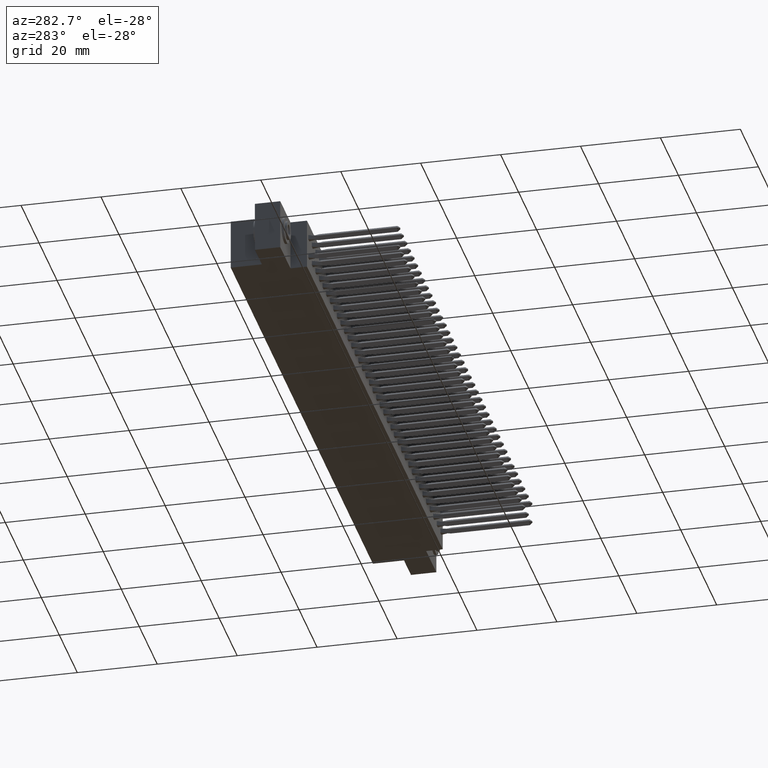
[diagram: clean part render]
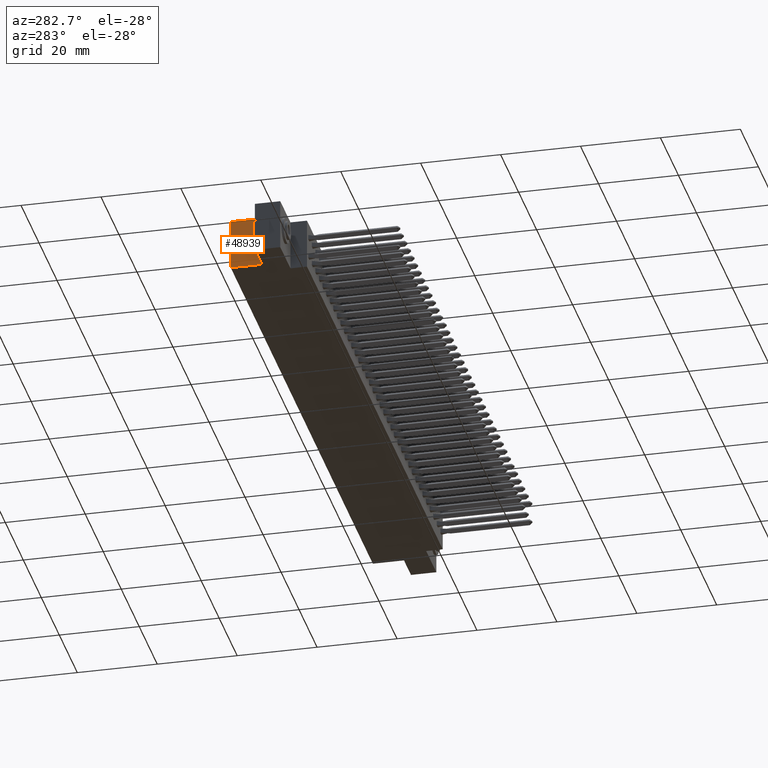
[diagram: same view with one face highlighted and labeled with its STEP entity id]
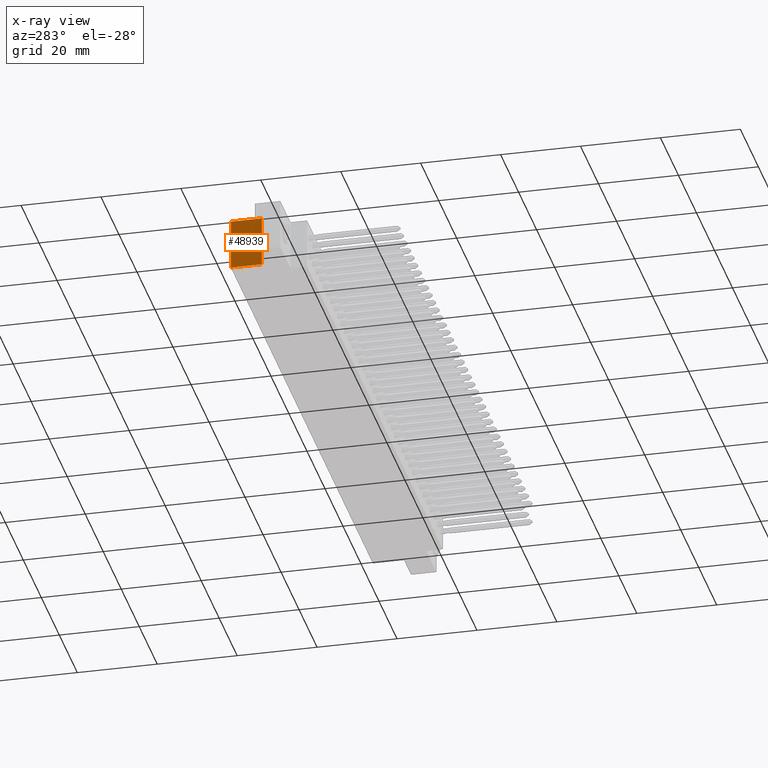
[diagram: x-ray of the same camera — body ghosted, the highlighted face saturated]
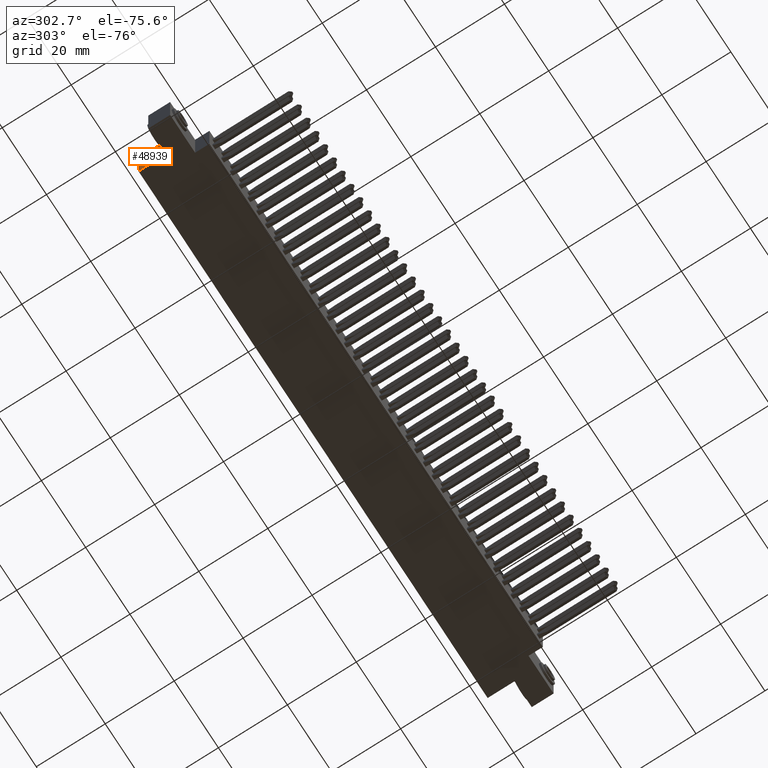
[diagram: same view with one face highlighted and labeled with its STEP entity id]
A machine part, auxiliary view. The second image highlights one B-rep face of the part: STEP entity #48939.
The next image is the same camera in x-ray: the body ghosted, the highlighted face saturated — about 0% of this face is hidden behind the body in this view.
A second angle (auxiliary view) of the same face is appended — the face is thin or edge-on in the first view.
In plain terms, the highlighted planar face has unit normal (1, 0, -0).
Its self-contained STEP definition (entity closure, byte-faithful):
#151 = CARTESIAN_POINT ( 'NONE',  ( 0.3050000000000000500, 0.4129999999999999200, 0.0000000000000000000 ) ) ;
#708 = CARTESIAN_POINT ( 'NONE',  ( 0.3049999999999999900, 0.4129999999999999200, -0.5000000000000000000 ) ) ;
#1053 = CARTESIAN_POINT ( 'NONE',  ( 0.3050000000000000500, 0.4129999999999999200, -0.5000000000000000000 ) ) ;
#1367 = FACE_OUTER_BOUND ( 'NONE', #30813, .T. ) ;
#2786 = ORIENTED_EDGE ( 'NONE', *, *, #50946, .T. ) ;
#3480 = CARTESIAN_POINT ( 'NONE',  ( 0.3050000000000000500, 0.4129999999999999200, 0.0000000000000000000 ) ) ;
#3602 = DIRECTION ( 'NONE',  ( -0.0000000000000000000, 1.000000000000000000, -0.0000000000000000000 ) ) ;
#4714 = DIRECTION ( 'NONE',  ( -1.365923996832131600E-016, 0.0000000000000000000, -1.000000000000000000 ) ) ;
#4964 = CARTESIAN_POINT ( 'NONE',  ( 0.3049999999999999900, 0.7199999999999999700, -0.5000000000000000000 ) ) ;
#7237 = VERTEX_POINT ( 'NONE', #14486 ) ;
#9688 = DIRECTION ( 'NONE',  ( -1.365923996832131600E-016, -0.0000000000000000000, -1.000000000000000000 ) ) ;
#12526 = DIRECTION ( 'NONE',  ( -1.365923996832131600E-016, -0.0000000000000000000, -1.000000000000000000 ) ) ;
#13334 = VERTEX_POINT ( 'NONE', #1053 ) ;
#14486 = CARTESIAN_POINT ( 'NONE',  ( 0.3050000000000000500, 0.7199999999999999700, 0.0000000000000000000 ) ) ;
#14594 = LINE ( 'NONE', #4964, #49232 ) ;
#15644 = ORIENTED_EDGE ( 'NONE', *, *, #22316, .F. ) ;
#15879 = CARTESIAN_POINT ( 'NONE',  ( 0.3049999999999999900, 0.4129999999999999200, -0.5000000000000000000 ) ) ;
#18146 = LINE ( 'NONE', #21413, #28314 ) ;
#21413 = CARTESIAN_POINT ( 'NONE',  ( 0.3049999999999999900, 0.4129999999999999200, -0.5000000000000000000 ) ) ;
#22167 = VECTOR ( 'NONE', #47885, 39.37007874015748100 ) ;
#22316 = EDGE_CURVE ( 'NONE', #33498, #13334, #18146, .T. ) ;
#22637 = VERTEX_POINT ( 'NONE', #27749 ) ;
#23835 = ORIENTED_EDGE ( 'NONE', *, *, #36667, .F. ) ;
#27749 = CARTESIAN_POINT ( 'NONE',  ( 0.3049999999999999900, 0.7199999999999999700, -0.5000000000000000000 ) ) ;
#28314 = VECTOR ( 'NONE', #12526, 39.37007874015748100 ) ;
#30813 = EDGE_LOOP ( 'NONE', ( #35663, #23835, #15644, #2786 ) ) ;
#33498 = VERTEX_POINT ( 'NONE', #3480 ) ;
#33656 = LINE ( 'NONE', #151, #22167 ) ;
#34945 = LINE ( 'NONE', #15879, #53284 ) ;
#35663 = ORIENTED_EDGE ( 'NONE', *, *, #51513, .T. ) ;
#36546 = AXIS2_PLACEMENT_3D ( 'NONE', #708, #39508, #4714 ) ;
#36667 = EDGE_CURVE ( 'NONE', #13334, #22637, #34945, .T. ) ;
#39508 = DIRECTION ( 'NONE',  ( 1.000000000000000000, 0.0000000000000000000, -1.365923996832131600E-016 ) ) ;
#47885 = DIRECTION ( 'NONE',  ( -0.0000000000000000000, 1.000000000000000000, -0.0000000000000000000 ) ) ;
#47901 = PLANE ( 'NONE',  #36546 ) ;
#48939 = ADVANCED_FACE ( 'NONE', ( #1367 ), #47901, .F. ) ;
#49232 = VECTOR ( 'NONE', #9688, 39.37007874015748100 ) ;
#50946 = EDGE_CURVE ( 'NONE', #33498, #7237, #33656, .T. ) ;
#51513 = EDGE_CURVE ( 'NONE', #7237, #22637, #14594, .T. ) ;
#53284 = VECTOR ( 'NONE', #3602, 39.37007874015748100 ) ;